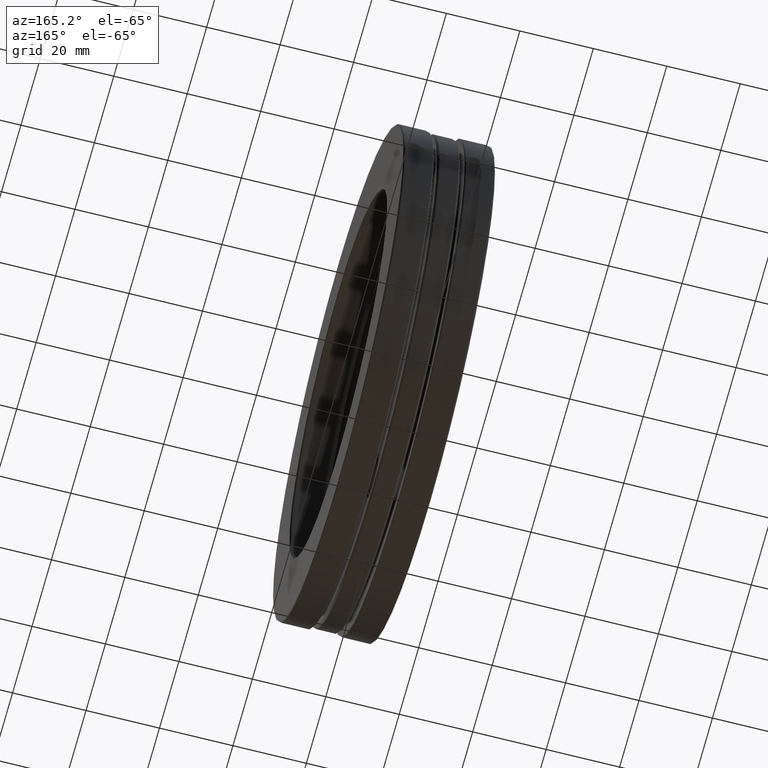
[diagram: clean part render]
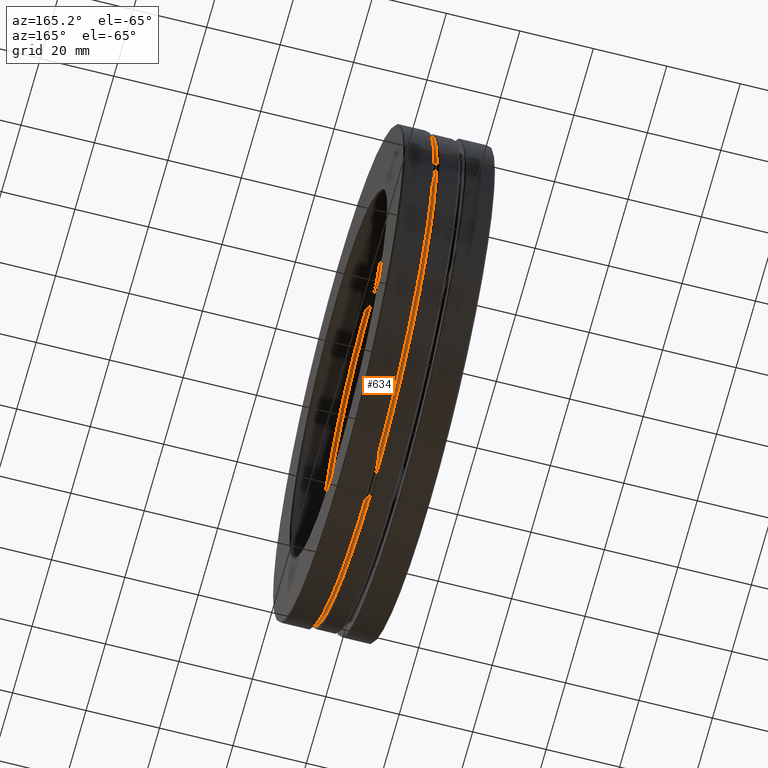
[diagram: same view with one face highlighted and labeled with its STEP entity id]
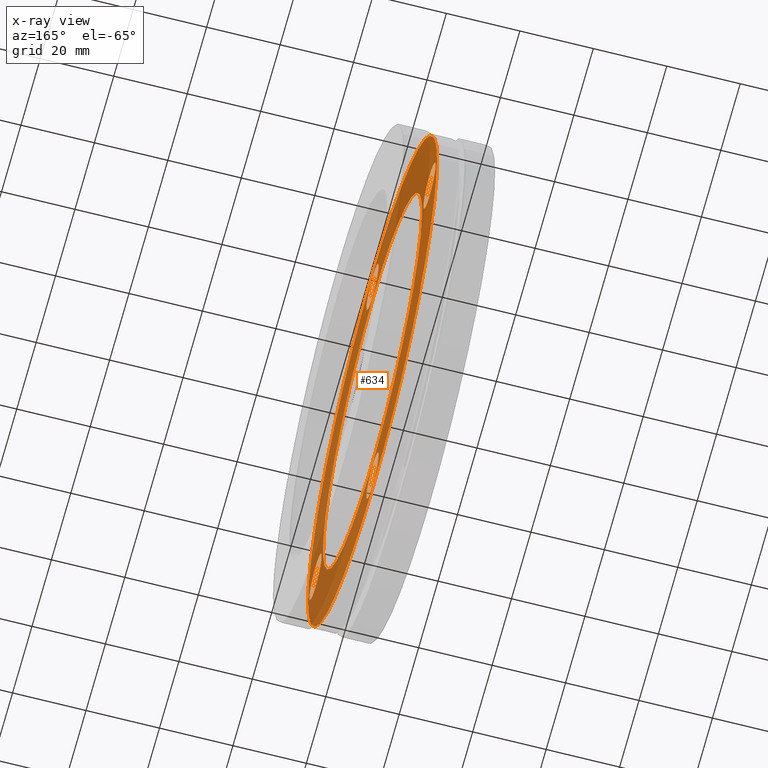
[diagram: x-ray of the same camera — body ghosted, the highlighted face saturated]
A machine part, auxiliary view. The second image highlights one B-rep face of the part: STEP entity #634.
The next image is the same camera in x-ray: the body ghosted, the highlighted face saturated — about 41% of this face is hidden behind the body in this view.
In plain terms, the highlighted planar face has unit normal (1, 0, 0).
Its self-contained STEP definition (entity closure, byte-faithful):
#12 = EDGE_CURVE ( 'NONE', #457, #457, #61, .T. ) ;
#14 = AXIS2_PLACEMENT_3D ( 'NONE', #605, #402, #336 ) ;
#39 = CARTESIAN_POINT ( 'NONE',  ( 0.1229999999999999700, 0.0000000000000000000, 0.0000000000000000000 ) ) ;
#41 = FACE_BOUND ( 'NONE', #432, .T. ) ;
#49 = ORIENTED_EDGE ( 'NONE', *, *, #436, .F. ) ;
#60 = CIRCLE ( 'NONE', #72, 0.2470000000000005000 ) ;
#61 = CIRCLE ( 'NONE', #14, 0.2470000000000005000 ) ;
#72 = AXIS2_PLACEMENT_3D ( 'NONE', #295, #173, #550 ) ;
#154 = EDGE_CURVE ( 'NONE', #329, #329, #471, .T. ) ;
#158 = EDGE_LOOP ( 'NONE', ( #330 ) ) ;
#161 = CARTESIAN_POINT ( 'NONE',  ( 0.1230000000000000300, 0.0000000000000000000, 2.008500000000000600 ) ) ;
#173 = DIRECTION ( 'NONE',  ( 1.000000000000000000, 0.0000000000000000000, 0.0000000000000000000 ) ) ;
#181 = FACE_BOUND ( 'NONE', #205, .T. ) ;
#190 = CIRCLE ( 'NONE', #792, 0.2470000000000005000 ) ;
#197 = ORIENTED_EDGE ( 'NONE', *, *, #154, .F. ) ;
#205 = EDGE_LOOP ( 'NONE', ( #197 ) ) ;
#236 = EDGE_LOOP ( 'NONE', ( #763 ) ) ;
#262 = CARTESIAN_POINT ( 'NONE',  ( 0.1230000000000000100, 0.2470000000000247000, 2.312999999999997500 ) ) ;
#280 = DIRECTION ( 'NONE',  ( 1.000000000000000000, 0.0000000000000000000, 0.0000000000000000000 ) ) ;
#281 = CARTESIAN_POINT ( 'NONE',  ( 0.1230000000000000100, -2.313000000000000200, 0.2470000000000005000 ) ) ;
#295 = CARTESIAN_POINT ( 'NONE',  ( 0.1230000000000000100, -2.313000000000000200, 0.0000000000000000000 ) ) ;
#326 = AXIS2_PLACEMENT_3D ( 'NONE', #39, #491, #564 ) ;
#329 = VERTEX_POINT ( 'NONE', #671 ) ;
#330 = ORIENTED_EDGE ( 'NONE', *, *, #12, .F. ) ;
#336 = DIRECTION ( 'NONE',  ( 0.0000000000000000000, 1.000000000000000000, -9.954102001205798600E-015 ) ) ;
#337 = VERTEX_POINT ( 'NONE', #552 ) ;
#346 = VERTEX_POINT ( 'NONE', #161 ) ;
#348 = CARTESIAN_POINT ( 'NONE',  ( 0.1230000000000000100, 1.034536032083450600E-017, 0.0000000000000000000 ) ) ;
#353 = DIRECTION ( 'NONE',  ( -1.000000000000000000, -0.0000000000000000000, -0.0000000000000000000 ) ) ;
#361 = DIRECTION ( 'NONE',  ( 0.0000000000000000000, -1.000000000000000000, 3.318034000401932600E-015 ) ) ;
#378 = DIRECTION ( 'NONE',  ( 0.0000000000000000000, 0.0000000000000000000, -1.000000000000000000 ) ) ;
#384 = FACE_BOUND ( 'NONE', #158, .T. ) ;
#388 = ORIENTED_EDGE ( 'NONE', *, *, #499, .T. ) ;
#391 = EDGE_CURVE ( 'NONE', #554, #554, #653, .T. ) ;
#402 = DIRECTION ( 'NONE',  ( 1.000000000000000000, 0.0000000000000000000, 0.0000000000000000000 ) ) ;
#432 = EDGE_LOOP ( 'NONE', ( #49 ) ) ;
#435 = CARTESIAN_POINT ( 'NONE',  ( 0.1230000000000000100, -8.075796336744167400E-015, -2.313000000000000200 ) ) ;
#436 = EDGE_CURVE ( 'NONE', #525, #525, #60, .T. ) ;
#445 = CARTESIAN_POINT ( 'NONE',  ( 0.1230000000000000100, 2.313000000000000200, 0.0000000000000000000 ) ) ;
#452 = CIRCLE ( 'NONE', #592, 2.008500000000000600 ) ;
#457 = VERTEX_POINT ( 'NONE', #262 ) ;
#471 = CIRCLE ( 'NONE', #633, 0.2470000000000005000 ) ;
#474 = PLANE ( 'NONE',  #757 ) ;
#491 = DIRECTION ( 'NONE',  ( -1.000000000000000000, -0.0000000000000000000, -0.0000000000000000000 ) ) ;
#499 = EDGE_CURVE ( 'NONE', #346, #346, #452, .T. ) ;
#509 = DIRECTION ( 'NONE',  ( 1.000000000000000000, -0.0000000000000000000, 0.0000000000000000000 ) ) ;
#525 = VERTEX_POINT ( 'NONE', #281 ) ;
#550 = DIRECTION ( 'NONE',  ( 0.0000000000000000000, 0.0000000000000000000, 1.000000000000000000 ) ) ;
#552 = CARTESIAN_POINT ( 'NONE',  ( 0.1230000000000000100, -0.2470000000000085500, -2.312999999999999300 ) ) ;
#554 = VERTEX_POINT ( 'NONE', #799 ) ;
#564 = DIRECTION ( 'NONE',  ( 0.0000000000000000000, 0.0000000000000000000, 1.000000000000000000 ) ) ;
#592 = AXIS2_PLACEMENT_3D ( 'NONE', #734, #353, #793 ) ;
#605 = CARTESIAN_POINT ( 'NONE',  ( 0.1230000000000000100, 2.422738901023250200E-014, 2.313000000000000200 ) ) ;
#609 = EDGE_LOOP ( 'NONE', ( #644 ) ) ;
#610 = FACE_OUTER_BOUND ( 'NONE', #236, .T. ) ;
#633 = AXIS2_PLACEMENT_3D ( 'NONE', #445, #509, #378 ) ;
#634 = ADVANCED_FACE ( 'NONE', ( #668, #41, #384, #181, #776, #610 ), #474, .T. ) ;
#644 = ORIENTED_EDGE ( 'NONE', *, *, #662, .F. ) ;
#653 = CIRCLE ( 'NONE', #326, 2.617500000000000600 ) ;
#662 = EDGE_CURVE ( 'NONE', #337, #337, #190, .T. ) ;
#668 = FACE_BOUND ( 'NONE', #609, .T. ) ;
#671 = CARTESIAN_POINT ( 'NONE',  ( 0.1230000000000000100, 2.313000000000000200, -0.2470000000000005000 ) ) ;
#728 = DIRECTION ( 'NONE',  ( 0.0000000000000000000, 0.0000000000000000000, -1.000000000000000000 ) ) ;
#734 = CARTESIAN_POINT ( 'NONE',  ( 0.1230000000000000300, 0.0000000000000000000, 0.0000000000000000000 ) ) ;
#747 = DIRECTION ( 'NONE',  ( 1.000000000000000000, 0.0000000000000000000, 0.0000000000000000000 ) ) ;
#757 = AXIS2_PLACEMENT_3D ( 'NONE', #348, #280, #728 ) ;
#763 = ORIENTED_EDGE ( 'NONE', *, *, #391, .F. ) ;
#774 = EDGE_LOOP ( 'NONE', ( #388 ) ) ;
#776 = FACE_BOUND ( 'NONE', #774, .T. ) ;
#792 = AXIS2_PLACEMENT_3D ( 'NONE', #435, #747, #361 ) ;
#793 = DIRECTION ( 'NONE',  ( 0.0000000000000000000, 0.0000000000000000000, 1.000000000000000000 ) ) ;
#799 = CARTESIAN_POINT ( 'NONE',  ( 0.1229999999999999700, 0.0000000000000000000, 2.617500000000000600 ) ) ;